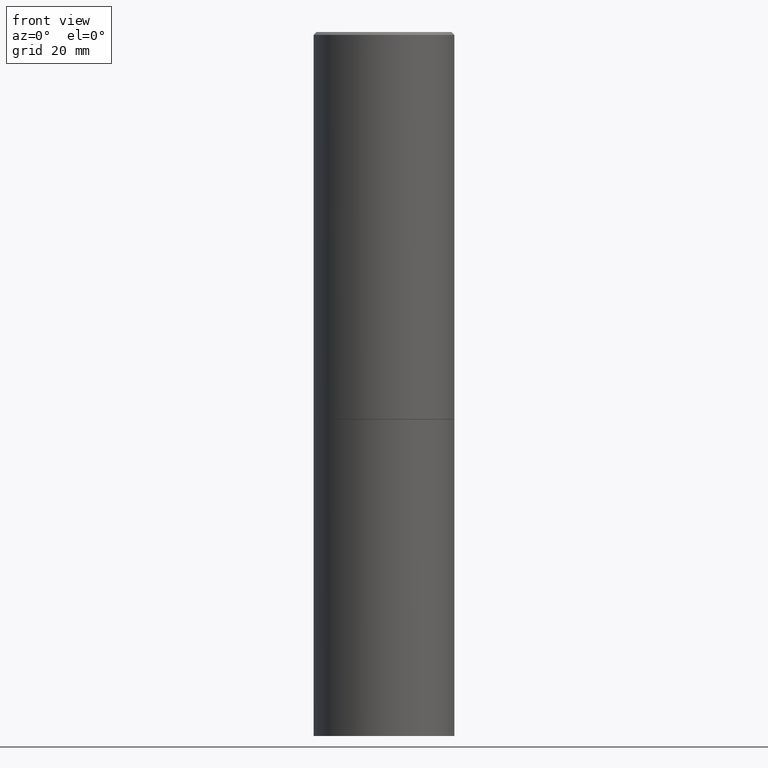
[diagram: clean part render]
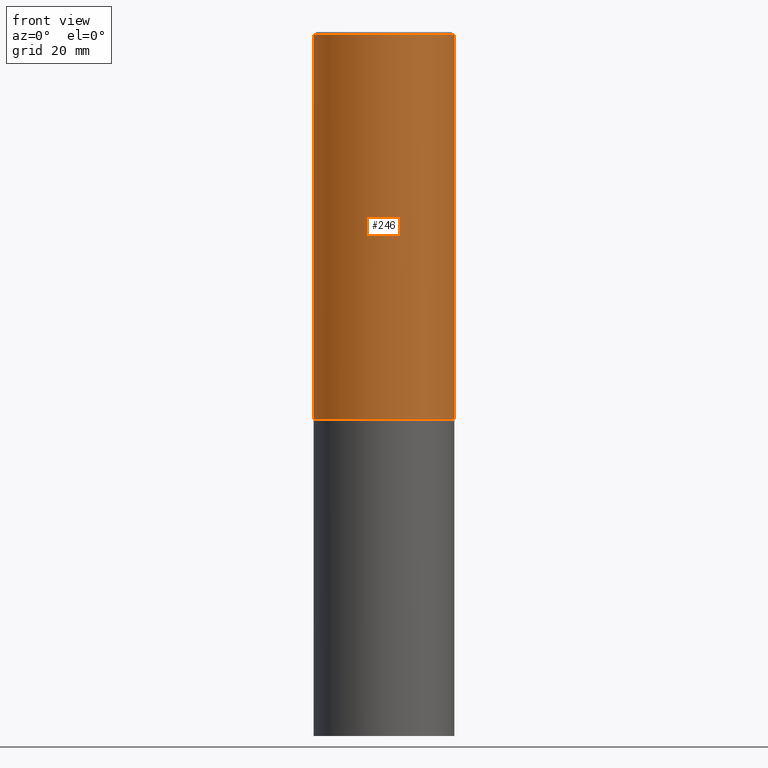
[diagram: same view with one face highlighted and labeled with its STEP entity id]
A machine part, front view. The second image highlights one B-rep face of the part: STEP entity #246.
In plain terms, the highlighted cylindrical surface (partial cylindrical patch) has radius 12.7 mm, axis along (-0, 0, 1).
Its self-contained STEP definition (entity closure, byte-faithful):
#4 = CIRCLE ( 'NONE', #259, 0.5000000000000001110 ) ;
#13 = DIRECTION ( 'NONE',  ( -2.445468806185136877E-29, 3.491481338843145188E-15, 1.000000000000000000 ) ) ;
#17 = CARTESIAN_POINT ( 'NONE',  ( -0.4999999999999996114, 3.421651712066267296E-15, -0.02000000000000010797 ) ) ;
#22 = CARTESIAN_POINT ( 'NONE',  ( 0.4999999999999996114, -3.500078625662626318E-15, -0.02000000000000010797 ) ) ;
#45 = CARTESIAN_POINT ( 'NONE',  ( 0.5000000000000001110, -1.308956353932294179E-14, -2.749000000000000110 ) ) ;
#48 = AXIS2_PLACEMENT_3D ( 'NONE', #325, #69, #267 ) ;
#52 = ORIENTED_EDGE ( 'NONE', *, *, #300, .T. ) ;
#57 = ORIENTED_EDGE ( 'NONE', *, *, #217, .F. ) ;
#68 = EDGE_CURVE ( 'NONE', #155, #288, #205, .T. ) ;
#69 = DIRECTION ( 'NONE',  ( -2.445468806185136597E-29, 3.491481338843145583E-15, 1.000000000000000000 ) ) ;
#134 = CYLINDRICAL_SURFACE ( 'NONE', #249, 0.4999999999999998335 ) ;
#135 = DIRECTION ( 'NONE',  ( 1.000000000000000000, -6.982962677686267499E-15, 4.876176775795936353E-29 ) ) ;
#155 = VERTEX_POINT ( 'NONE', #272 ) ;
#168 = FACE_OUTER_BOUND ( 'NONE', #263, .T. ) ;
#175 = DIRECTION ( 'NONE',  ( -2.445468806185136877E-29, 3.491481338843145188E-15, 1.000000000000000000 ) ) ;
#188 = EDGE_CURVE ( 'NONE', #298, #234, #295, .T. ) ;
#195 = VECTOR ( 'NONE', #13, 39.37007874015748143 ) ;
#200 = CIRCLE ( 'NONE', #48, 0.4999999999999996114 ) ;
#205 = LINE ( 'NONE', #285, #322 ) ;
#217 = EDGE_CURVE ( 'NONE', #288, #234, #200, .T. ) ;
#234 = VERTEX_POINT ( 'NONE', #22 ) ;
#246 = ADVANCED_FACE ( 'NONE', ( #168 ), #134, .T. ) ;
#247 = DIRECTION ( 'NONE',  ( -2.445468806185136597E-29, 3.491481338843145583E-15, 1.000000000000000000 ) ) ;
#249 = AXIS2_PLACEMENT_3D ( 'NONE', #304, #273, #135 ) ;
#252 = CARTESIAN_POINT ( 'NONE',  ( 6.722593748202941159E-29, -9.598082200479808430E-15, -2.749000000000000110 ) ) ;
#259 = AXIS2_PLACEMENT_3D ( 'NONE', #252, #247, #275 ) ;
#263 = EDGE_LOOP ( 'NONE', ( #336, #52, #347, #57 ) ) ;
#267 = DIRECTION ( 'NONE',  ( 1.000000000000000000, -6.982962677686266711E-15, 0.000000000000000000 ) ) ;
#272 = CARTESIAN_POINT ( 'NONE',  ( -0.5000000000000001110, -1.281242234827831779E-15, -2.749000000000000110 ) ) ;
#273 = DIRECTION ( 'NONE',  ( -2.445468806185136597E-29, 3.491481338843145583E-15, 1.000000000000000000 ) ) ;
#275 = DIRECTION ( 'NONE',  ( 1.000000000000000000, -6.982962677686265133E-15, 0.000000000000000000 ) ) ;
#285 = CARTESIAN_POINT ( 'NONE',  ( -0.4999999999999998335, 3.552713678800499746E-15, -2.459467545127452330E-29 ) ) ;
#288 = VERTEX_POINT ( 'NONE', #17 ) ;
#295 = LINE ( 'NONE', #318, #195 ) ;
#298 = VERTEX_POINT ( 'NONE', #45 ) ;
#300 = EDGE_CURVE ( 'NONE', #155, #298, #4, .T. ) ;
#304 = CARTESIAN_POINT ( 'NONE',  ( 0.000000000000000000, 0.000000000000000000, 0.000000000000000000 ) ) ;
#318 = CARTESIAN_POINT ( 'NONE',  ( 0.4999999999999998335, -3.491481338843132566E-15, 2.438088387897967336E-29 ) ) ;
#322 = VECTOR ( 'NONE', #175, 39.37007874015748143 ) ;
#325 = CARTESIAN_POINT ( 'NONE',  ( 4.890937612370299433E-31, -6.982962677686328587E-17, -0.02000000000000010797 ) ) ;
#336 = ORIENTED_EDGE ( 'NONE', *, *, #68, .F. ) ;
#347 = ORIENTED_EDGE ( 'NONE', *, *, #188, .T. ) ;